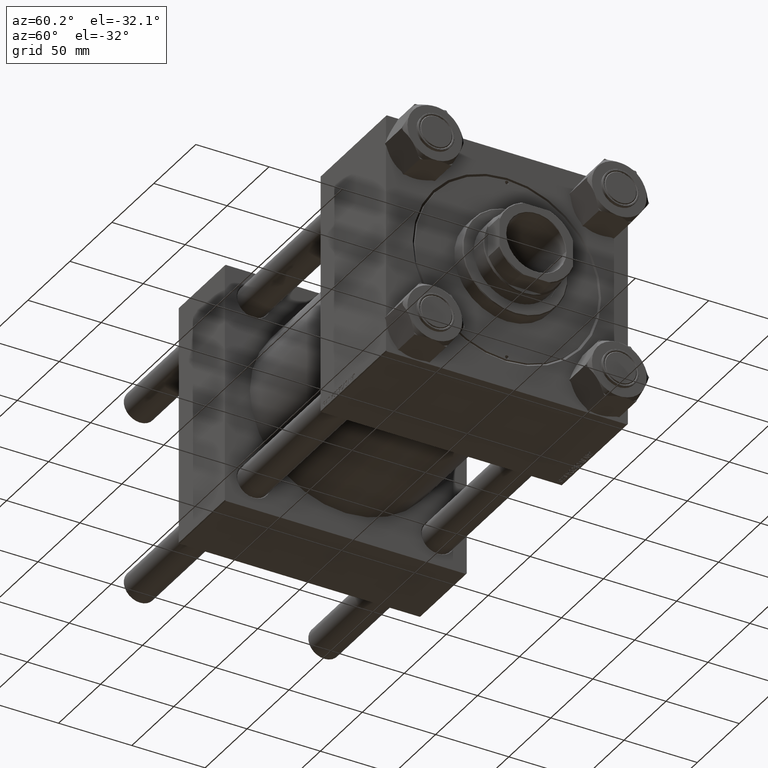
[diagram: clean part render]
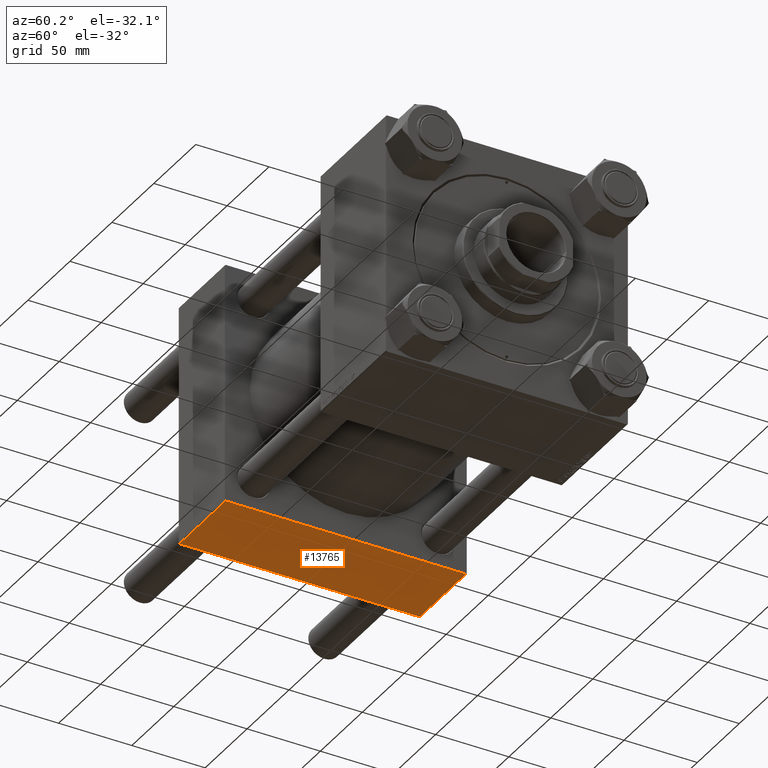
[diagram: same view with one face highlighted and labeled with its STEP entity id]
A machine part, auxiliary view. The second image highlights one B-rep face of the part: STEP entity #13765.
In plain terms, the highlighted planar face has unit normal (0, 0, -1).
Its self-contained STEP definition (entity closure, byte-faithful):
#1724 = DIRECTION ( 'NONE',  ( 0.000000000000000000, -1.000000000000000000, -1.682156097916903588E-16 ) ) ;
#1888 = VECTOR ( 'NONE', #40942, 1000.000000000000000 ) ;
#1894 = CARTESIAN_POINT ( 'NONE',  ( 55.00000000000000000, 82.00000000000005684, -82.49999999999997158 ) ) ;
#2468 = LINE ( 'NONE', #29278, #12113 ) ;
#3675 = DIRECTION ( 'NONE',  ( 0.000000000000000000, 1.682156097916903588E-16, -1.000000000000000000 ) ) ;
#6722 = ORIENTED_EDGE ( 'NONE', *, *, #47490, .F. ) ;
#7287 = CARTESIAN_POINT ( 'NONE',  ( 0.000000000000000000, -82.00000000000000000, -82.50000000000000000 ) ) ;
#8511 = VERTEX_POINT ( 'NONE', #43133 ) ;
#9493 = VECTOR ( 'NONE', #11364, 1000.000000000000000 ) ;
#10647 = CARTESIAN_POINT ( 'NONE',  ( 0.000000000000000000, -82.00000000000000000, -82.50000000000000000 ) ) ;
#11364 = DIRECTION ( 'NONE',  ( -1.000000000000000000, 0.000000000000000000, 0.000000000000000000 ) ) ;
#12113 = VECTOR ( 'NONE', #1724, 1000.000000000000000 ) ;
#13433 = DIRECTION ( 'NONE',  ( 0.000000000000000000, -1.000000000000000000, -1.682156097916903588E-16 ) ) ;
#13508 = EDGE_CURVE ( 'NONE', #37743, #44751, #2468, .T. ) ;
#13765 = ADVANCED_FACE ( 'NONE', ( #49087 ), #40457, .T. ) ;
#17206 = ORIENTED_EDGE ( 'NONE', *, *, #13508, .T. ) ;
#18631 = AXIS2_PLACEMENT_3D ( 'NONE', #21054, #3675, #30485 ) ;
#19049 = EDGE_LOOP ( 'NONE', ( #6722, #35588, #17206, #24249 ) ) ;
#21054 = CARTESIAN_POINT ( 'NONE',  ( 55.00000000000000000, 82.50000000000002842, -82.49999999999997158 ) ) ;
#22271 = VERTEX_POINT ( 'NONE', #10647 ) ;
#24138 = EDGE_CURVE ( 'NONE', #8511, #37743, #25377, .T. ) ;
#24249 = ORIENTED_EDGE ( 'NONE', *, *, #46416, .T. ) ;
#25377 = LINE ( 'NONE', #1894, #1888 ) ;
#29278 = CARTESIAN_POINT ( 'NONE',  ( 55.00000000000000000, 82.50000000000002842, -82.49999999999997158 ) ) ;
#30485 = DIRECTION ( 'NONE',  ( 0.000000000000000000, 1.000000000000000000, 1.682156097916903588E-16 ) ) ;
#30515 = LINE ( 'NONE', #7287, #9493 ) ;
#31169 = CARTESIAN_POINT ( 'NONE',  ( 55.00000000000000000, 82.00000000000005684, -82.49999999999997158 ) ) ;
#31286 = CARTESIAN_POINT ( 'NONE',  ( 55.00000000000000000, -82.00000000000000000, -82.50000000000000000 ) ) ;
#35588 = ORIENTED_EDGE ( 'NONE', *, *, #24138, .T. ) ;
#36925 = LINE ( 'NONE', #49574, #45407 ) ;
#37743 = VERTEX_POINT ( 'NONE', #31169 ) ;
#40457 = PLANE ( 'NONE',  #18631 ) ;
#40942 = DIRECTION ( 'NONE',  ( 1.000000000000000000, 0.000000000000000000, 0.000000000000000000 ) ) ;
#43133 = CARTESIAN_POINT ( 'NONE',  ( 0.000000000000000000, 82.00000000000005684, -82.49999999999997158 ) ) ;
#44751 = VERTEX_POINT ( 'NONE', #31286 ) ;
#45407 = VECTOR ( 'NONE', #13433, 1000.000000000000000 ) ;
#46416 = EDGE_CURVE ( 'NONE', #44751, #22271, #30515, .T. ) ;
#47490 = EDGE_CURVE ( 'NONE', #8511, #22271, #36925, .T. ) ;
#49087 = FACE_OUTER_BOUND ( 'NONE', #19049, .T. ) ;
#49574 = CARTESIAN_POINT ( 'NONE',  ( 0.000000000000000000, 82.50000000000002842, -82.49999999999997158 ) ) ;